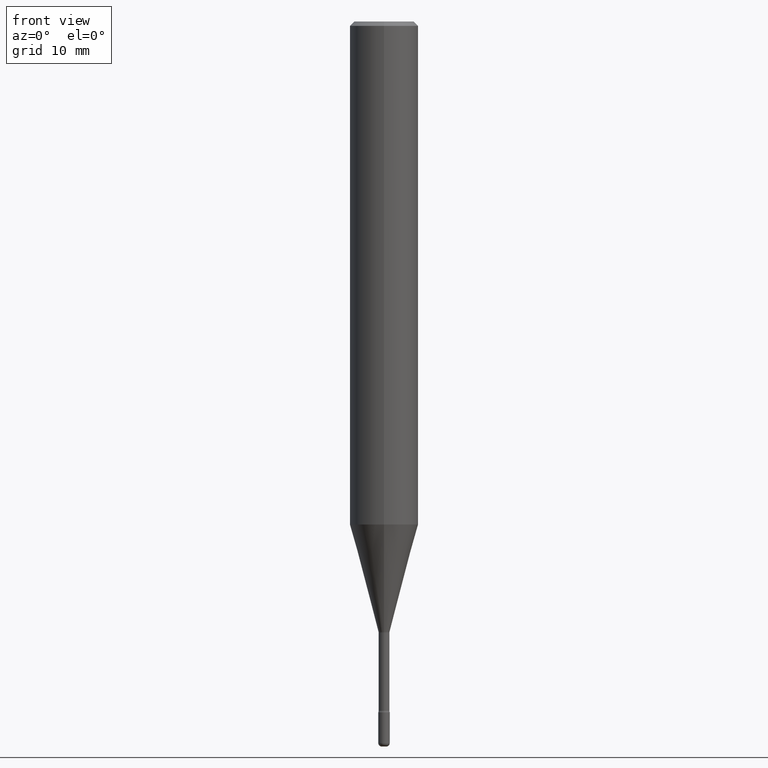
[diagram: clean part render]
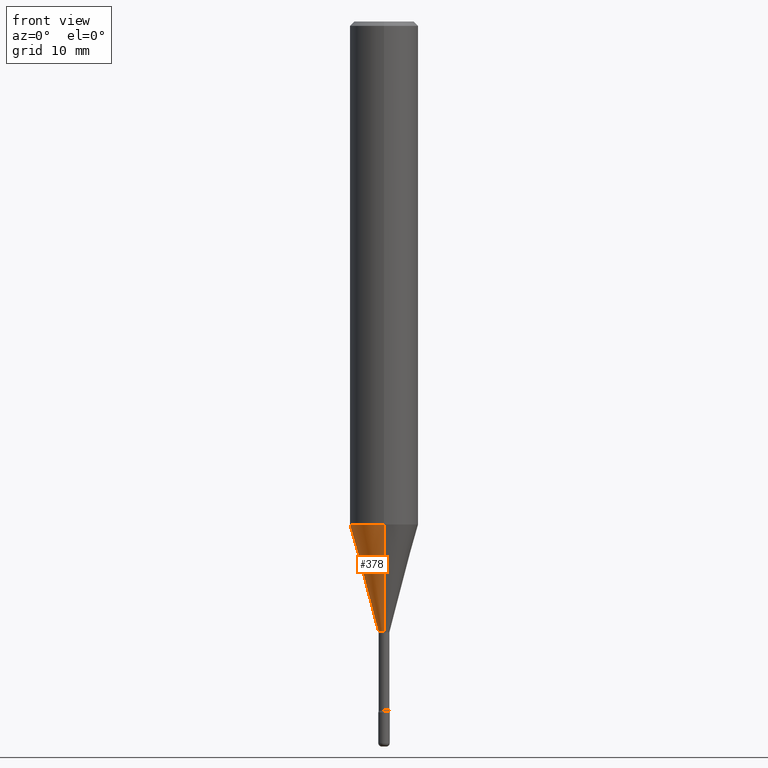
[diagram: same view with one face highlighted and labeled with its STEP entity id]
A machine part, front view. The second image highlights one B-rep face of the part: STEP entity #378.
In plain terms, the highlighted conical surface has half-angle 15 deg.
Its self-contained STEP definition (entity closure, byte-faithful):
#17 = ORIENTED_EDGE ( 'NONE', *, *, #511, .F. ) ;
#22 = DIRECTION ( 'NONE',  ( -6.982962677686265922E-15, -1.000000000000000000, 4.626330217890369336E-15 ) ) ;
#23 = ORIENTED_EDGE ( 'NONE', *, *, #443, .T. ) ;
#45 = CARTESIAN_POINT ( 'NONE',  ( 5.145829368748516646E-29, -7.348015461868996732E-15, -2.104392501787273329 ) ) ;
#68 = EDGE_LOOP ( 'NONE', ( #17, #411, #23, #454 ) ) ;
#72 = DIRECTION ( 'NONE',  ( -6.982962677686265133E-15, -1.000000000000000000, 0.000000000000000000 ) ) ;
#113 = DIRECTION ( 'NONE',  ( -2.445280224282367565E-29, 3.491751398861325958E-15, 1.000000000000000000 ) ) ;
#120 = VERTEX_POINT ( 'NONE', #219 ) ;
#126 = DIRECTION ( 'NONE',  ( -2.445280224282367565E-29, 3.491751398861325958E-15, 1.000000000000000000 ) ) ;
#132 = CONICAL_SURFACE ( 'NONE', #431, 0.01901111260566398092, 0.2617993877991499629 ) ;
#133 = CIRCLE ( 'NONE', #349, 0.01901111260566398092 ) ;
#153 = EDGE_CURVE ( 'NONE', #362, #457, #133, .T. ) ;
#169 = VECTOR ( 'NONE', #515, 39.37007874015748854 ) ;
#199 = CARTESIAN_POINT ( 'NONE',  ( 4.871165252697454148E-16, 0.01901111260565663263, -2.104392501787273329 ) ) ;
#219 = CARTESIAN_POINT ( 'NONE',  ( 8.391509709327204011E-16, 0.1180999999999939182, -1.734587739566141096 ) ) ;
#257 = CARTESIAN_POINT ( 'NONE',  ( -8.246878922347057627E-16, -0.1181000000000060751, -1.734587739566140430 ) ) ;
#268 = CIRCLE ( 'NONE', #338, 0.1180999999999999966 ) ;
#283 = CARTESIAN_POINT ( 'NONE',  ( -1.327538897865910147E-16, -0.01901111260567132921, -2.104392501787273329 ) ) ;
#289 = DIRECTION ( 'NONE',  ( -1.807323732225328167E-15, -0.2588190451025179084, 0.9659258262890690894 ) ) ;
#335 = CARTESIAN_POINT ( 'NONE',  ( 1.350820796067695411E-16, 0.01901111260565663263, -2.104392501787273329 ) ) ;
#338 = AXIS2_PLACEMENT_3D ( 'NONE', #462, #417, #22 ) ;
#349 = AXIS2_PLACEMENT_3D ( 'NONE', #45, #126, #480 ) ;
#362 = VERTEX_POINT ( 'NONE', #199 ) ;
#378 = ADVANCED_FACE ( 'NONE', ( #410 ), #132, .T. ) ;
#410 = FACE_OUTER_BOUND ( 'NONE', #68, .T. ) ;
#411 = ORIENTED_EDGE ( 'NONE', *, *, #153, .T. ) ;
#417 = DIRECTION ( 'NONE',  ( -2.445280224282367565E-29, 3.491751398861325958E-15, 1.000000000000000000 ) ) ;
#431 = AXIS2_PLACEMENT_3D ( 'NONE', #467, #113, #72 ) ;
#443 = EDGE_CURVE ( 'NONE', #457, #525, #513, .T. ) ;
#454 = ORIENTED_EDGE ( 'NONE', *, *, #477, .F. ) ;
#457 = VERTEX_POINT ( 'NONE', #283 ) ;
#462 = CARTESIAN_POINT ( 'NONE',  ( 4.241553096843737534E-29, -6.056749166077777869E-15, -1.734587739566140652 ) ) ;
#467 = CARTESIAN_POINT ( 'NONE',  ( 5.145829368748516646E-29, -7.348015461868996732E-15, -2.104392501787273329 ) ) ;
#471 = CARTESIAN_POINT ( 'NONE',  ( -1.327538897865910147E-16, -0.01901111260567132921, -2.104392501787273329 ) ) ;
#477 = EDGE_CURVE ( 'NONE', #120, #525, #268, .T. ) ;
#480 = DIRECTION ( 'NONE',  ( -6.982962677686265133E-15, -1.000000000000000000, 0.000000000000000000 ) ) ;
#511 = EDGE_CURVE ( 'NONE', #362, #120, #520, .T. ) ;
#513 = LINE ( 'NONE', #471, #544 ) ;
#515 = DIRECTION ( 'NONE',  ( 1.839019923739597949E-15, 0.2588190451025246253, 0.9659258262890670910 ) ) ;
#520 = LINE ( 'NONE', #335, #169 ) ;
#525 = VERTEX_POINT ( 'NONE', #257 ) ;
#544 = VECTOR ( 'NONE', #289, 39.37007874015748143 ) ;